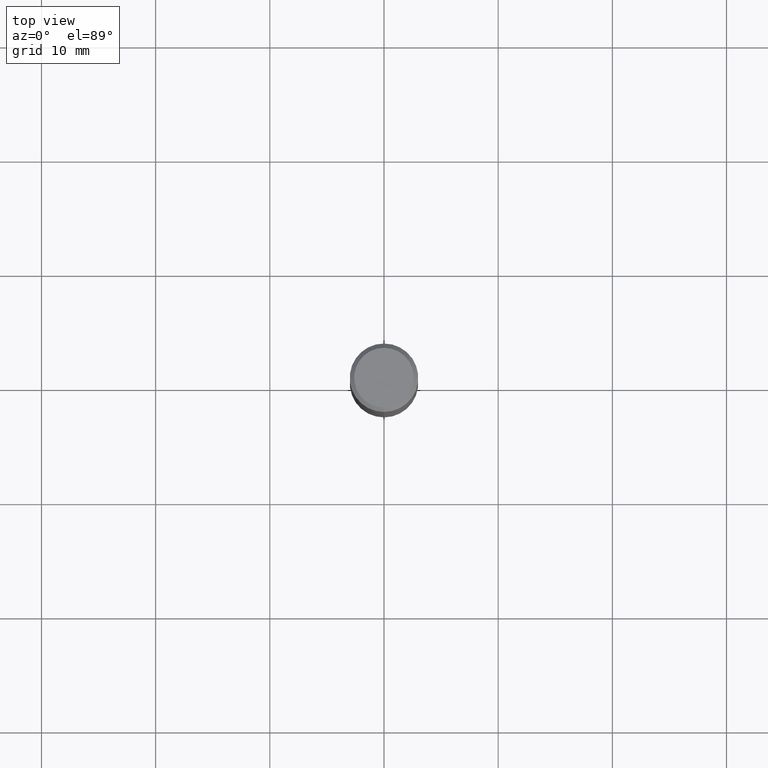
[diagram: clean part render]
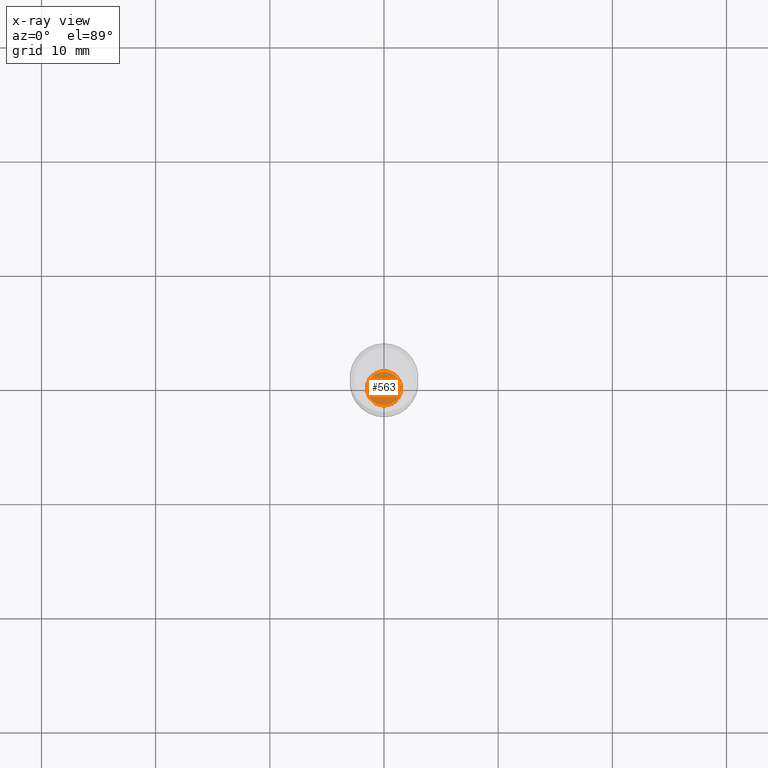
[diagram: x-ray — body ghosted, one internal face saturated and labeled with its STEP entity id]
A machine part, top view, then the same camera in x-ray: the body is ghosted and one INTERNAL B-rep face — a face not visible from any outside direction — is saturated and labeled: STEP entity #563.
In plain terms, the highlighted planar face has unit normal (-0, 0, 1).
Its self-contained STEP definition (entity closure, byte-faithful):
#7 = CARTESIAN_POINT ( 'NONE',  ( -4.123439461173217214E-16, -0.05905000000000752008, -2.145699999999999719 ) ) ;
#22 = DIRECTION ( 'NONE',  ( -2.445314574720221172E-29, 3.491702207079214016E-15, 1.000000000000000000 ) ) ;
#69 = DIRECTION ( 'NONE',  ( -6.982962677686265922E-15, -1.000000000000000000, 4.626330217890369336E-15 ) ) ;
#94 = CARTESIAN_POINT ( 'NONE',  ( 5.246911482977179404E-29, -7.492145425729869203E-15, -2.145700000000000163 ) ) ;
#96 = AXIS2_PLACEMENT_3D ( 'NONE', #249, #472, #69 ) ;
#127 = ORIENTED_EDGE ( 'NONE', *, *, #538, .F. ) ;
#131 = CIRCLE ( 'NONE', #96, 0.05904999999999999832 ) ;
#158 = FACE_OUTER_BOUND ( 'NONE', #342, .T. ) ;
#199 = VERTEX_POINT ( 'NONE', #395 ) ;
#231 = EDGE_CURVE ( 'NONE', #254, #199, #277, .T. ) ;
#249 = CARTESIAN_POINT ( 'NONE',  ( 5.246911482977179404E-29, -7.492145425729869203E-15, -2.145700000000000163 ) ) ;
#254 = VERTEX_POINT ( 'NONE', #7 ) ;
#265 = DIRECTION ( 'NONE',  ( -6.982962677686265922E-15, -1.000000000000000000, 4.626330217890369336E-15 ) ) ;
#277 = CIRCLE ( 'NONE', #322, 0.05904999999999999832 ) ;
#284 = PLANE ( 'NONE',  #537 ) ;
#322 = AXIS2_PLACEMENT_3D ( 'NONE', #94, #352, #265 ) ;
#342 = EDGE_LOOP ( 'NONE', ( #490, #127 ) ) ;
#352 = DIRECTION ( 'NONE',  ( -2.445314574720221452E-29, 3.491702207079214016E-15, 1.000000000000000000 ) ) ;
#381 = DIRECTION ( 'NONE',  ( -6.982962677686265922E-15, -1.000000000000000000, 3.491702207079214016E-15 ) ) ;
#395 = CARTESIAN_POINT ( 'NONE',  ( 4.195754854663917550E-16, 0.05904999999999253207, -2.145700000000000163 ) ) ;
#459 = CARTESIAN_POINT ( 'NONE',  ( 4.123439461174264426E-16, 0.05904999999999250432, -2.145700000000000163 ) ) ;
#472 = DIRECTION ( 'NONE',  ( -2.445314574720221452E-29, 3.491702207079214016E-15, 1.000000000000000000 ) ) ;
#490 = ORIENTED_EDGE ( 'NONE', *, *, #231, .F. ) ;
#537 = AXIS2_PLACEMENT_3D ( 'NONE', #459, #22, #381 ) ;
#538 = EDGE_CURVE ( 'NONE', #199, #254, #131, .T. ) ;
#563 = ADVANCED_FACE ( 'NONE', ( #158 ), #284, .F. ) ;